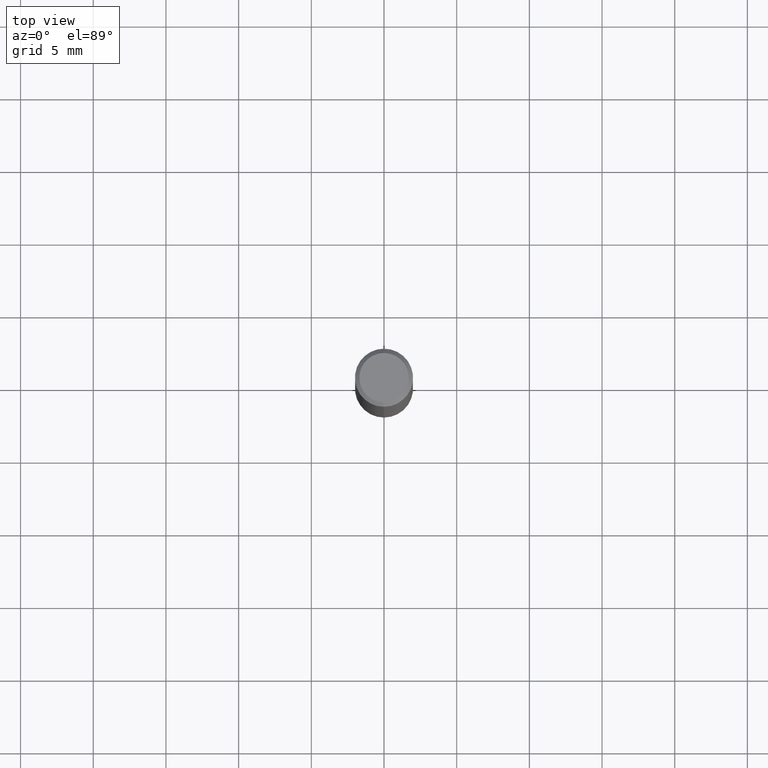
[diagram: clean part render]
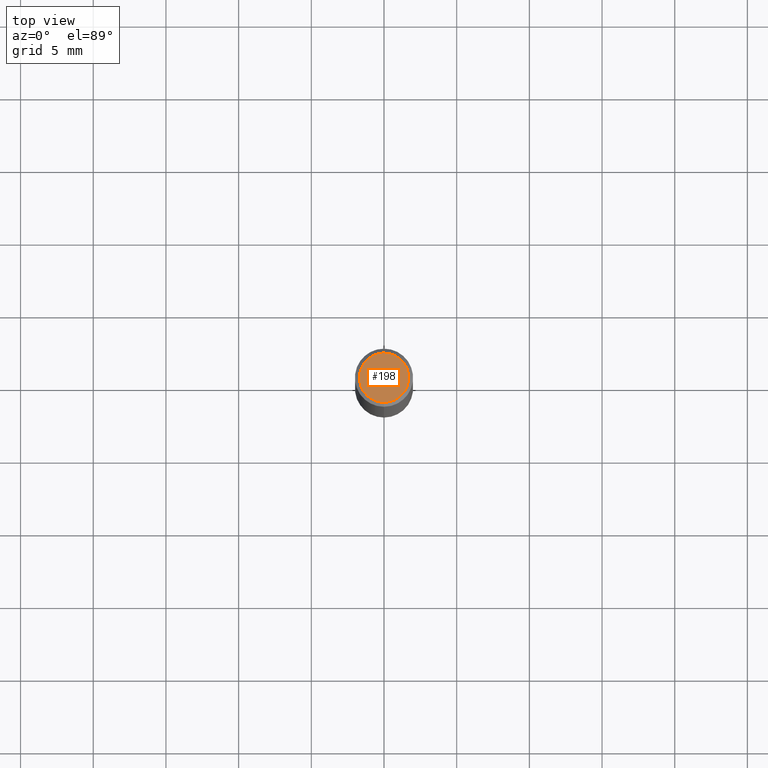
[diagram: same view with one face highlighted and labeled with its STEP entity id]
A machine part, top view. The second image highlights one B-rep face of the part: STEP entity #198.
In plain terms, the highlighted planar face has unit normal (-0, 0, 1).
Its self-contained STEP definition (entity closure, byte-faithful):
#102=VERTEX_POINT('',#255);
#130=VERTEX_POINT('',#287);
#164=EDGE_CURVE('',#130,#102,#326,.T.);
#196=EDGE_CURVE('',#102,#130,#363,.T.);
#198=ADVANCED_FACE('',(#365),#366,.T.);
#255=CARTESIAN_POINT('',(2.08183080149804E-016,-1.7,0.0));
#287=CARTESIAN_POINT('',(0.0,1.7,0.0));
#326=CIRCLE('',#508,1.7);
#363=CIRCLE('',#555,1.7);
#365=FACE_OUTER_BOUND('',#557,.T.);
#366=PLANE('',#558);
#508=AXIS2_PLACEMENT_3D('',#701,#702,#703);
#555=AXIS2_PLACEMENT_3D('',#748,#749,#750);
#557=EDGE_LOOP('',(#752,#753));
#558=AXIS2_PLACEMENT_3D('',#754,#755,#756);
#701=CARTESIAN_POINT('',(0.0,0.0,0.0));
#702=DIRECTION('',(0.0,0.0,-1.0));
#703=DIRECTION('',(0.0,1.0,0.0));
#748=CARTESIAN_POINT('',(0.0,0.0,0.0));
#749=DIRECTION('',(0.0,0.0,-1.0));
#750=DIRECTION('',(0.0,1.0,0.0));
#752=ORIENTED_EDGE('',*,*,#164,.F.);
#753=ORIENTED_EDGE('',*,*,#196,.F.);
#754=CARTESIAN_POINT('',(0.0,0.85,0.0));
#755=DIRECTION('',(-0.0,0.0,1.0));
#756=DIRECTION('',(0.0,-1.0,0.0));